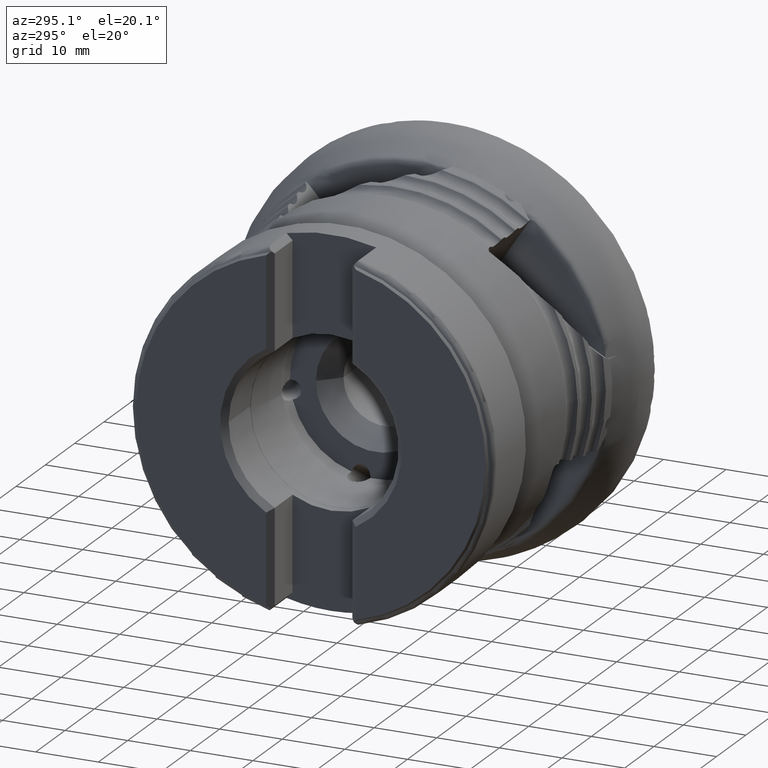
[diagram: clean part render]
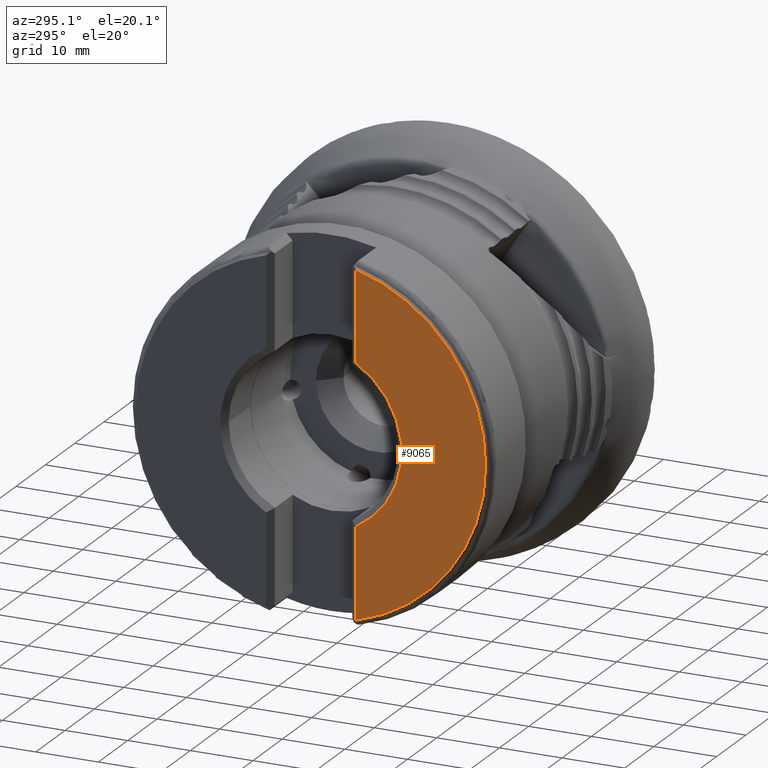
[diagram: same view with one face highlighted and labeled with its STEP entity id]
A machine part, auxiliary view. The second image highlights one B-rep face of the part: STEP entity #9065.
In plain terms, the highlighted planar face has unit normal (-1, 0, 0).
Its self-contained STEP definition (entity closure, byte-faithful):
#389 = CARTESIAN_POINT ( 'NONE',  ( -48.90525917703946100, -7.150000000000008300, -35.00000000000000000 ) ) ;
#802 = CIRCLE ( 'NONE', #8370, 27.92228756555323000 ) ;
#1339 = CARTESIAN_POINT ( 'NONE',  ( -48.90525917703946100, -7.150000000000010100, 26.99132532673133200 ) ) ;
#2456 = VERTEX_POINT ( 'NONE', #13139 ) ;
#2621 = CARTESIAN_POINT ( 'NONE',  ( -48.90525917703946100, -7.150000000000008300, -35.00000000000000000 ) ) ;
#3046 = PLANE ( 'NONE',  #3855 ) ;
#3179 = CARTESIAN_POINT ( 'NONE',  ( -48.90525917703946100, 5.222661873543247300E-018, 1.380080236933418700E-017 ) ) ;
#3855 = AXIS2_PLACEMENT_3D ( 'NONE', #4038, #5239, #12939 ) ;
#4038 = CARTESIAN_POINT ( 'NONE',  ( -48.90525917703946100, 0.0000000000000000000, 0.0000000000000000000 ) ) ;
#4267 = DIRECTION ( 'NONE',  ( 0.0000000000000000000, 0.0000000000000000000, 1.000000000000000000 ) ) ;
#4879 = VERTEX_POINT ( 'NONE', #1339 ) ;
#5239 = DIRECTION ( 'NONE',  ( -1.000000000000000000, 0.0000000000000000000, 0.0000000000000000000 ) ) ;
#5354 = LINE ( 'NONE', #2621, #11191 ) ;
#5839 = CARTESIAN_POINT ( 'NONE',  ( -48.90525917703946100, -7.150000000000008300, 12.64330356354698800 ) ) ;
#6412 = CARTESIAN_POINT ( 'NONE',  ( -48.90525917703946100, 0.0000000000000000000, 0.0000000000000000000 ) ) ;
#6484 = VERTEX_POINT ( 'NONE', #5839 ) ;
#6949 = CIRCLE ( 'NONE', #8552, 14.52500000000000400 ) ;
#7470 = VECTOR ( 'NONE', #11394, 1000.000000000000000 ) ;
#7524 = DIRECTION ( 'NONE',  ( 0.0000000000000000000, 0.0000000000000000000, 1.000000000000000000 ) ) ;
#7569 = FACE_OUTER_BOUND ( 'NONE', #10673, .T. ) ;
#7752 = EDGE_CURVE ( 'NONE', #11967, #2456, #13691, .T. ) ;
#8040 = EDGE_CURVE ( 'NONE', #4879, #2456, #802, .T. ) ;
#8370 = AXIS2_PLACEMENT_3D ( 'NONE', #6412, #14139, #7524 ) ;
#8552 = AXIS2_PLACEMENT_3D ( 'NONE', #3179, #10869, #4267 ) ;
#8825 = EDGE_CURVE ( 'NONE', #4879, #6484, #5354, .T. ) ;
#9009 = ORIENTED_EDGE ( 'NONE', *, *, #8825, .T. ) ;
#9065 = ADVANCED_FACE ( 'NONE', ( #7569 ), #3046, .T. ) ;
#9414 = ORIENTED_EDGE ( 'NONE', *, *, #7752, .T. ) ;
#10196 = CARTESIAN_POINT ( 'NONE',  ( -48.90525917703946100, -7.150000000000008300, -12.64330356354698800 ) ) ;
#10583 = ORIENTED_EDGE ( 'NONE', *, *, #8040, .F. ) ;
#10636 = ORIENTED_EDGE ( 'NONE', *, *, #12692, .T. ) ;
#10673 = EDGE_LOOP ( 'NONE', ( #9414, #10583, #9009, #10636 ) ) ;
#10869 = DIRECTION ( 'NONE',  ( 1.000000000000000000, -0.0000000000000000000, -0.0000000000000000000 ) ) ;
#11191 = VECTOR ( 'NONE', #13570, 1000.000000000000000 ) ;
#11394 = DIRECTION ( 'NONE',  ( 0.0000000000000000000, 0.0000000000000000000, -1.000000000000000000 ) ) ;
#11967 = VERTEX_POINT ( 'NONE', #10196 ) ;
#12692 = EDGE_CURVE ( 'NONE', #6484, #11967, #6949, .T. ) ;
#12939 = DIRECTION ( 'NONE',  ( 0.0000000000000000000, 0.0000000000000000000, 1.000000000000000000 ) ) ;
#13139 = CARTESIAN_POINT ( 'NONE',  ( -48.90525917703946100, -7.150000000000008300, -26.99132532673133500 ) ) ;
#13570 = DIRECTION ( 'NONE',  ( 0.0000000000000000000, 0.0000000000000000000, -1.000000000000000000 ) ) ;
#13691 = LINE ( 'NONE', #389, #7470 ) ;
#14139 = DIRECTION ( 'NONE',  ( 1.000000000000000000, -0.0000000000000000000, -0.0000000000000000000 ) ) ;